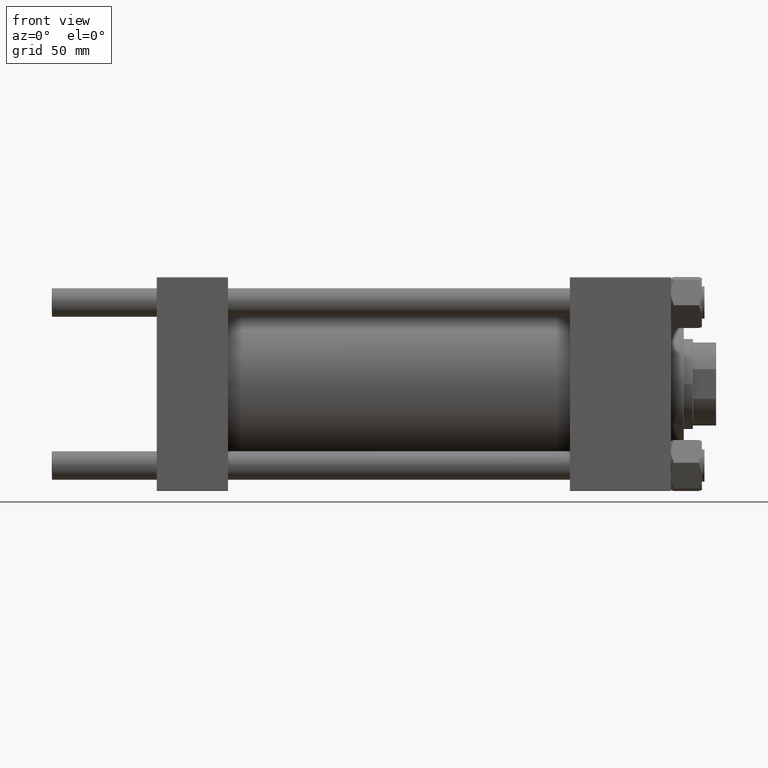
[diagram: clean part render]
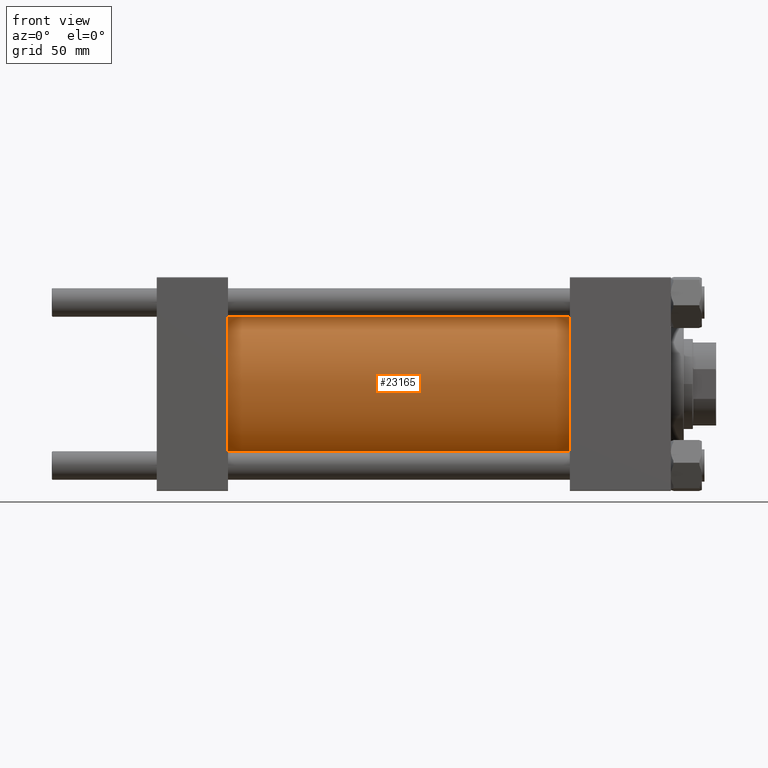
[diagram: same view with one face highlighted and labeled with its STEP entity id]
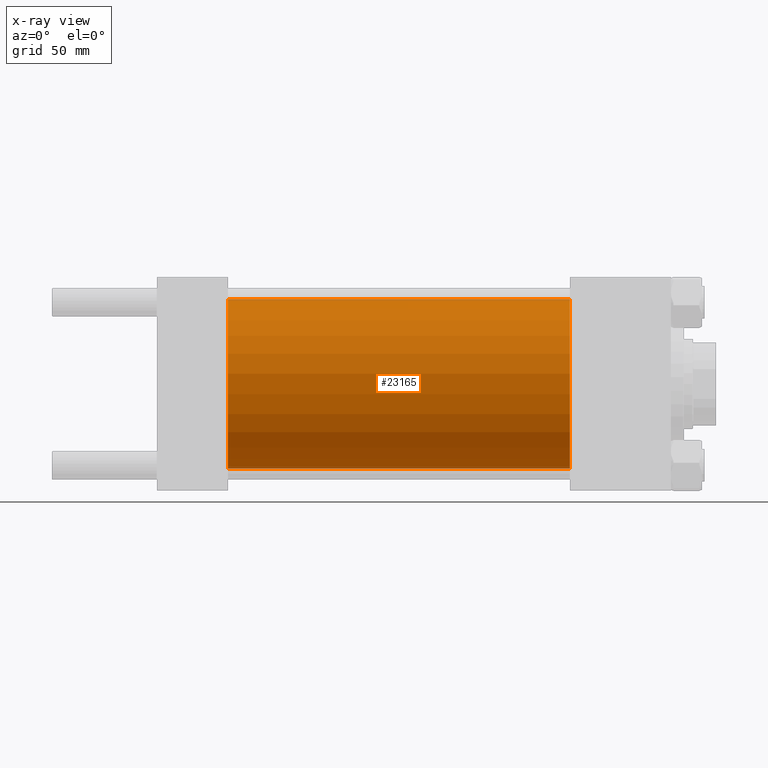
[diagram: x-ray of the same camera — body ghosted, the highlighted face saturated]
A machine part, front view. The second image highlights one B-rep face of the part: STEP entity #23165.
The next image is the same camera in x-ray: the body ghosted, the highlighted face saturated — about 2% of this face is hidden behind the body in this view.
In plain terms, the highlighted cylindrical surface (partial cylindrical patch) has radius 65.5 mm, axis along (-1, -0, -0).
Its self-contained STEP definition (entity closure, byte-faithful):
#1019 = AXIS2_PLACEMENT_3D ( 'NONE', #38668, #3675, #11580 ) ;
#1885 = EDGE_LOOP ( 'NONE', ( #31778, #29674, #40880, #31449 ) ) ;
#2545 = VERTEX_POINT ( 'NONE', #30006 ) ;
#2793 = LINE ( 'NONE', #33936, #27364 ) ;
#3675 = DIRECTION ( 'NONE',  ( -1.000000000000000000, -0.000000000000000000, -0.000000000000000000 ) ) ;
#7443 = DIRECTION ( 'NONE',  ( 1.000000000000000000, 0.000000000000000000, 0.000000000000000000 ) ) ;
#9271 = CARTESIAN_POINT ( 'NONE',  ( 319.0000000000000000, 8.021436534415166404E-15, -65.50000000000001421 ) ) ;
#10399 = DIRECTION ( 'NONE',  ( 0.000000000000000000, 0.000000000000000000, 1.000000000000000000 ) ) ;
#10696 = DIRECTION ( 'NONE',  ( -1.000000000000000000, -0.000000000000000000, -0.000000000000000000 ) ) ;
#11580 = DIRECTION ( 'NONE',  ( 0.000000000000000000, 0.000000000000000000, 1.000000000000000000 ) ) ;
#12331 = CYLINDRICAL_SURFACE ( 'NONE', #1019, 65.50000000000001421 ) ;
#12573 = LINE ( 'NONE', #9271, #15109 ) ;
#14615 = CIRCLE ( 'NONE', #47221, 65.50000000000001421 ) ;
#14819 = VERTEX_POINT ( 'NONE', #20769 ) ;
#15109 = VECTOR ( 'NONE', #24309, 1000.000000000000000 ) ;
#15338 = EDGE_CURVE ( 'NONE', #2545, #37248, #14615, .T. ) ;
#20769 = CARTESIAN_POINT ( 'NONE',  ( 319.0000000000000000, 8.021436534415166404E-15, -65.50000000000001421 ) ) ;
#21363 = DIRECTION ( 'NONE',  ( 1.000000000000000000, -0.000000000000000000, -0.000000000000000000 ) ) ;
#22351 = AXIS2_PLACEMENT_3D ( 'NONE', #42406, #7443, #25359 ) ;
#23165 = ADVANCED_FACE ( 'NONE', ( #43482 ), #12331, .T. ) ;
#24309 = DIRECTION ( 'NONE',  ( -1.000000000000000000, -0.000000000000000000, -0.000000000000000000 ) ) ;
#24596 = CARTESIAN_POINT ( 'NONE',  ( 319.0000000000000000, 0.000000000000000000, 65.50000000000001421 ) ) ;
#25359 = DIRECTION ( 'NONE',  ( 0.000000000000000000, 0.000000000000000000, -1.000000000000000000 ) ) ;
#27364 = VECTOR ( 'NONE', #10696, 1000.000000000000000 ) ;
#29044 = CARTESIAN_POINT ( 'NONE',  ( 54.99999999999999289, 0.000000000000000000, 0.000000000000000000 ) ) ;
#29674 = ORIENTED_EDGE ( 'NONE', *, *, #32902, .F. ) ;
#30006 = CARTESIAN_POINT ( 'NONE',  ( 54.99999999999999289, 0.000000000000000000, 65.50000000000001421 ) ) ;
#31449 = ORIENTED_EDGE ( 'NONE', *, *, #15338, .T. ) ;
#31778 = ORIENTED_EDGE ( 'NONE', *, *, #35015, .F. ) ;
#32902 = EDGE_CURVE ( 'NONE', #47201, #14819, #46014, .T. ) ;
#33936 = CARTESIAN_POINT ( 'NONE',  ( 319.0000000000000000, 0.000000000000000000, 65.50000000000001421 ) ) ;
#35015 = EDGE_CURVE ( 'NONE', #14819, #37248, #12573, .T. ) ;
#37248 = VERTEX_POINT ( 'NONE', #43784 ) ;
#38668 = CARTESIAN_POINT ( 'NONE',  ( 319.0000000000000000, 0.000000000000000000, 0.000000000000000000 ) ) ;
#40880 = ORIENTED_EDGE ( 'NONE', *, *, #43790, .T. ) ;
#42406 = CARTESIAN_POINT ( 'NONE',  ( 319.0000000000000000, 0.000000000000000000, 0.000000000000000000 ) ) ;
#43482 = FACE_OUTER_BOUND ( 'NONE', #1885, .T. ) ;
#43784 = CARTESIAN_POINT ( 'NONE',  ( 54.99999999999999289, 8.021436534415166404E-15, -65.50000000000001421 ) ) ;
#43790 = EDGE_CURVE ( 'NONE', #47201, #2545, #2793, .T. ) ;
#46014 = CIRCLE ( 'NONE', #22351, 65.50000000000001421 ) ;
#47201 = VERTEX_POINT ( 'NONE', #24596 ) ;
#47221 = AXIS2_PLACEMENT_3D ( 'NONE', #29044, #21363, #10399 ) ;